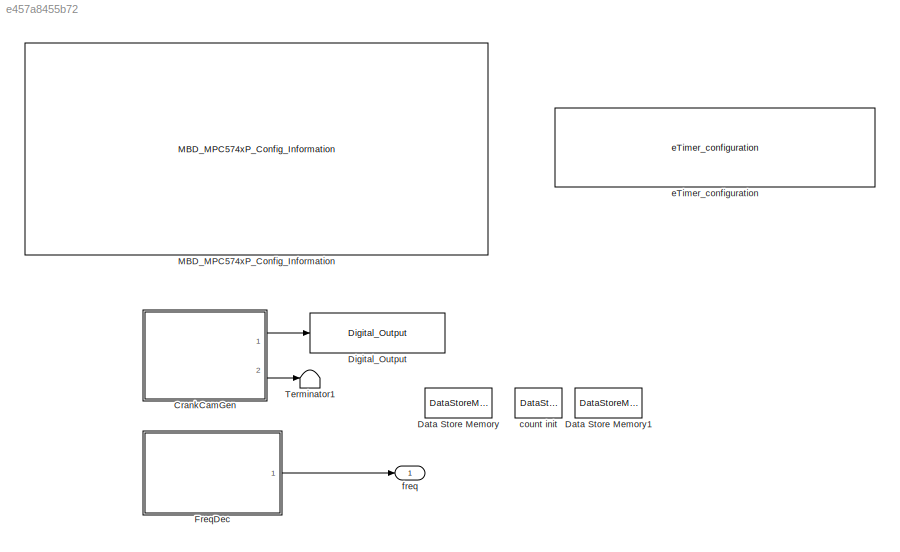
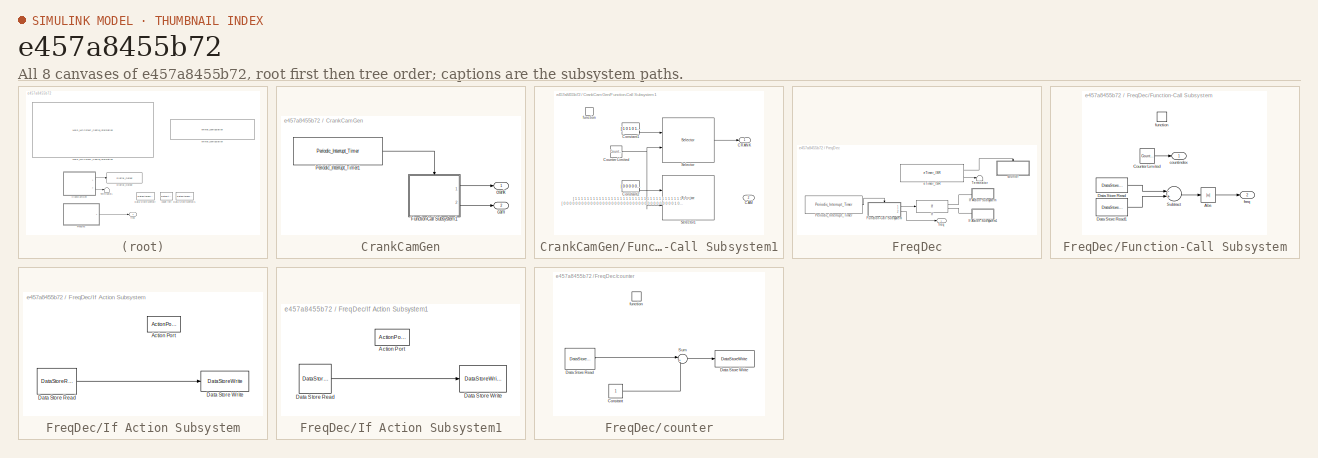
[diagram: thumbnail index - all 8 canvases of the model, root first then tree order]
MODEL slx_e457a8455b72
KIND model
CONFIG AbsTol = auto
CONFIG EnableMultiTasking = off
CONFIG FixedStep = 1e-4
CONFIG InitFcn = mbd_pnt_consistency_checks(bdroot(gcs));
CONFIG MaxStep = auto
CONFIG MinStep = auto
CONFIG RelTol = 1e-3
CONFIG SampleTimeConstraint = Unconstrained
CONFIG Solver = FixedStepDiscrete
CONFIG SolverName = FixedStepDiscrete
CONFIG StartTime = 0.0
CONFIG StopTime = 10.0
BLOCK [SubSystem] CrankCamGen
  Ports = [0, 2]
  RequestExecContextInheritance = off
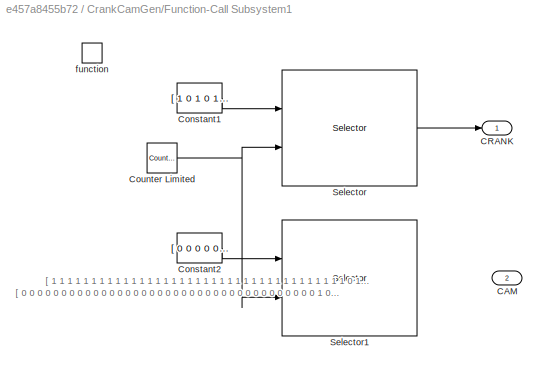
BLOCK [SubSystem] CrankCamGen/Function-Call Subsystem1
  Ports = [0, 2, 0, 1]
  RequestExecContextInheritance = off
  TreatAsAtomicUnit = on
BLOCK [Outport] CrankCamGen/Function-Call Subsystem1/CAM
  IconDisplay = Port number
  Port = 2
BLOCK [Outport] CrankCamGen/Function-Call Subsystem1/CRANK
  IconDisplay = Port number
BLOCK [Constant] CrankCamGen/Function-Call Subsystem1/Constant1
  OutDataTypeStr = boolean
  Value = [ 1 0 1 0 1 0 1 0 1 0 1 0 1 0 1 0 1 0 1 0 1 0 1 0 1 0 1 0 1 0 1 0 1 0 1 0 0 0 0 0 1 0 1 0 1 0 1 0 1 0 1 0 1 0 1 0 1 0 1 0 1 0 1 0 1 0 1 0 1 0 1 0 1 0 1 0 0 0 0 0 1 0 1 0 1 0 1 0 1 0 1 0 1 0 1 0 1 0 1 0 1 0 1 0 1 0 1 0 1 0 1 0 1 0 1 0 0 0 0 0 1 0 1 0 1 0 1 0 1 0 1 0 1 0 1 0 1 0 1 0 1 0 1 0 1 0 1 0 1 0 1 0 1 0 1 0 0 0 0 0 1 0 1 0 1 0 1 0 1 0 1 0 1 0 1 0 1 0 1 0 1 0 1 0 1 0 1 0 1 0 1 0 1 0 1 0 0 0 0 ...<+83ch>
BLOCK [Constant] CrankCamGen/Function-Call Subsystem1/Constant2
  OutDataTypeStr = boolean
  Value = [ 0 0 0 0 0 0 0 0 0 0 0 0 0 0 0 0 0 0 0 0 0 0 0 0 0 0 0 0 0 0 0 0 0 0 0 0 0 1 0 0 0 0 0 0 0 0 0 0 0 0 0 0 0 0 0 0 0 0 0 0 0 0 0 0 0 0 0 0 0 0 0 0 0 0 0 0 0 1 0 0 0 0 0 0 0 0 0 0 0 0 0 0 0 0 0 0 0 0 0 0 0 0 0 0 0 0 0 0 0 0 0 0 0 0 0 0 0 1 0 0 0 0 0 0 0 0 0 0 0 0 0 0 0 0 0 0 0 0 0 0 0 0 0 0 0 0 0 0 0 0 0 0 0 0 0 0 0 1 0 0 0 0 0 0 0 0 0 0 0 0 0 0 0 0 0 0 0 0 0 0 0 0 0 0 0 0 0 0 0 0 0 0 0 0 0 0 0 1 0 ...<+83ch>
BLOCK [Reference] CrankCamGen/Function-Call Subsystem1/Counter Limited  REF=simulink/Sources/Counter
Limited
  Ports = [0, 1]
  SourceBlock = simulink/Sources/Counter\nLimited
  SourceProductBaseCode = SL
  SourceProductName = Simulink
  SourceType = Counter Limited
BLOCK [Selector] CrankCamGen/Function-Call Subsystem1/Selector
  IndexMode = Zero-based
  IndexOptions = Index vector (port)
  Indices = [1 3]
  InputPortWidth = 240
  OutputSizes = 1
  Ports = [2, 1]
BLOCK [Selector] CrankCamGen/Function-Call Subsystem1/Selector1
  IndexMode = Zero-based
  IndexOptions = Index vector (port)
  Indices = [1 3]
  InputPortWidth = 240
  OutputSizes = 1
  Ports = [2, 1]
BLOCK [TriggerPort] CrankCamGen/Function-Call Subsystem1/function
  Ports = []
  StatesWhenEnabling = held
  TriggerType = function-call
  VariantControl = Variant
BLOCK [Reference] CrankCamGen/Periodic_Interrupt_Timer1  REF=mbd_pnt_ec_toolbox/MPC574xP/Utility Blocks/Periodic_Interrupt_Timer
  Ports = [0, 1]
  SourceBlock = mbd_pnt_ec_toolbox/MPC574xP/Utility Blocks/Periodic_Interrupt_Timer
  SourceProductName = Model Based Design Toolbox for MPC574xP
  SourceType = timer_pnt_pit_block
BLOCK [Outport] CrankCamGen/cam
  IconDisplay = Port number
  Port = 2
BLOCK [Outport] CrankCamGen/crank
  IconDisplay = Port number
BLOCK [DataStoreMemory] Data Store Memory
  DataStoreName = counterprev
  OutDataTypeStr = double
  ReadBeforeWriteMsg = warning
  ShowAdditionalParam = off
  WriteAfterReadMsg = warning
  WriteAfterWriteMsg = warning
BLOCK [DataStoreMemory] Data Store Memory1
  DataStoreName = counternext
  OutDataTypeStr = double
  ReadBeforeWriteMsg = warning
  ShowAdditionalParam = off
  WriteAfterReadMsg = warning
  WriteAfterWriteMsg = warning
BLOCK [Reference] Digital_Output  REF=mbd_pnt_ec_toolbox/MPC574xP/Peripheral Interface Blocks/Digital_Output
  Ports = [1]
  SourceBlock = mbd_pnt_ec_toolbox/MPC574xP/Peripheral Interface Blocks/Digital_Output
  SourceProductName = Model Based Design Toolbox for MPC574xP
  SourceType = GPIO_PNT_Output
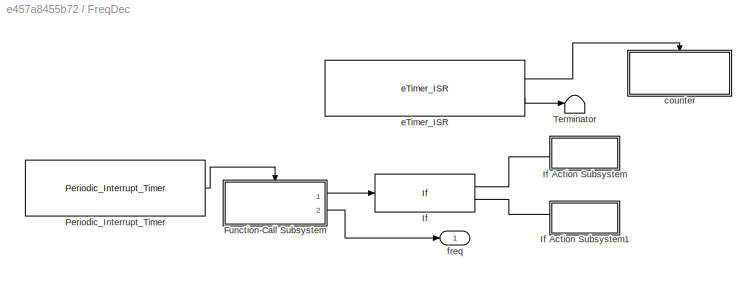
BLOCK [SubSystem] FreqDec
  Ports = [0, 1]
  RequestExecContextInheritance = off
BLOCK [SubSystem] FreqDec/Function-Call Subsystem
  Ports = [0, 2, 0, 1]
  RequestExecContextInheritance = off
  TreatAsAtomicUnit = on
BLOCK [Abs] FreqDec/Function-Call Subsystem/Abs
  SaturateOnIntegerOverflow = off
BLOCK [Reference] FreqDec/Function-Call Subsystem/Counter Limited  REF=simulink/Sources/Counter
Limited
  Ports = [0, 1]
  SourceBlock = simulink/Sources/Counter\nLimited
  SourceProductBaseCode = SL
  SourceProductName = Simulink
  SourceType = Counter Limited
BLOCK [DataStoreRead] FreqDec/Function-Call Subsystem/Data Store Read
  DataStoreName = counterprev
  Ports = [0, 1]
BLOCK [DataStoreRead] FreqDec/Function-Call Subsystem/Data Store Read1
  DataStoreName = counternext
  Ports = [0, 1]
BLOCK [Sum] FreqDec/Function-Call Subsystem/Subtract
  InputSameDT = off
  Inputs = -+
  OutDataTypeStr = Inherit: Inherit via internal rule
  Ports = [2, 1]
  SaturateOnIntegerOverflow = off
BLOCK [Outport] FreqDec/Function-Call Subsystem/countindex
  IconDisplay = Port number
BLOCK [Outport] FreqDec/Function-Call Subsystem/freq
  IconDisplay = Port number
  Port = 2
BLOCK [TriggerPort] FreqDec/Function-Call Subsystem/function
  Ports = []
  StatesWhenEnabling = held
  TriggerType = function-call
  VariantControl = Variant
BLOCK [If] FreqDec/If
  IfExpression = u1 == 0
  Ports = [1, 2]
BLOCK [SubSystem] FreqDec/If Action Subsystem
  Ports = [0, 0, 0, 0, 0, 0, 0, 1]
  RequestExecContextInheritance = off
  TreatAsAtomicUnit = on
BLOCK [ActionPort] FreqDec/If Action Subsystem/Action Port
  ActionType = then
BLOCK [DataStoreRead] FreqDec/If Action Subsystem/Data Store Read
  DataStoreName = countedge
  Ports = [0, 1]
BLOCK [DataStoreWrite] FreqDec/If Action Subsystem/Data Store Write
  DataStoreName = counterprev
  Ports = [1]
BLOCK [SubSystem] FreqDec/If Action Subsystem1
  Ports = [0, 0, 0, 0, 0, 0, 0, 1]
  RequestExecContextInheritance = off
  TreatAsAtomicUnit = on
BLOCK [ActionPort] FreqDec/If Action Subsystem1/Action Port
  ActionType = else
BLOCK [DataStoreRead] FreqDec/If Action Subsystem1/Data Store Read
  DataStoreName = countedge
  Ports = [0, 1]
BLOCK [DataStoreWrite] FreqDec/If Action Subsystem1/Data Store Write
  DataStoreName = counternext
  Ports = [1]
BLOCK [Reference] FreqDec/Periodic_Interrupt_Timer  REF=mbd_pnt_ec_toolbox/MPC574xP/Utility Blocks/Periodic_Interrupt_Timer
  Ports = [0, 1]
  SourceBlock = mbd_pnt_ec_toolbox/MPC574xP/Utility Blocks/Periodic_Interrupt_Timer
  SourceProductName = Model Based Design Toolbox for MPC574xP
  SourceType = timer_pnt_pit_block
BLOCK [Terminator] FreqDec/Terminator
BLOCK [SubSystem] FreqDec/counter
  Ports = [0, 0, 0, 1]
  RequestExecContextInheritance = off
  TreatAsAtomicUnit = on
BLOCK [Constant] FreqDec/counter/Constant
  OutDataTypeStr = double
BLOCK [DataStoreRead] FreqDec/counter/Data Store Read
  DataStoreName = countedge
  Ports = [0, 1]
BLOCK [DataStoreWrite] FreqDec/counter/Data Store Write
  DataStoreName = countedge
  Ports = [1]
BLOCK [Sum] FreqDec/counter/Sum
  IconShape = round
  InputSameDT = off
  Inputs = |++
  OutDataTypeStr = Inherit: Inherit via internal rule
  Ports = [2, 1]
  SaturateOnIntegerOverflow = off
BLOCK [TriggerPort] FreqDec/counter/function
  Ports = []
  StatesWhenEnabling = held
  TriggerType = function-call
  VariantControl = Variant
BLOCK [Reference] FreqDec/eTimer_ISR  REF=mbd_pnt_ec_toolbox/MPC574xP/Motor Control Blocks/eTimer_ISR
  Ports = [0, 2]
  SourceBlock = mbd_pnt_ec_toolbox/MPC574xP/Motor Control Blocks/eTimer_ISR
  SourceProductName = Model Based Design Toolbox for MPC574xP
  SourceType = eTimer_pnt_interrupt
BLOCK [Outport] FreqDec/freq
  IconDisplay = Port number
BLOCK [Reference] MBD_MPC574xP_Config_Information  REF=mbd_pnt_ec_toolbox/MPC574xP/MBD_MPC574xP_Config_Information
  Ports = []
  SourceBlock = mbd_pnt_ec_toolbox/MPC574xP/MBD_MPC574xP_Config_Information
  SourceProductName = Model Based Design Toolbox for MPC574xP
  SourceType = MBDTBX_EC_PNT
BLOCK [Terminator] Terminator1
BLOCK [DataStoreMemory] count init
  DataStoreName = countedge
  OutDataTypeStr = double
  ReadBeforeWriteMsg = warning
  ShowAdditionalParam = off
  WriteAfterReadMsg = warning
  WriteAfterWriteMsg = warning
BLOCK [Reference] eTimer_configuration  REF=mbd_pnt_ec_toolbox/MPC574xP/Motor Control Blocks/eTimer_configuration
  Ports = []
  SourceBlock = mbd_pnt_ec_toolbox/MPC574xP/Motor Control Blocks/eTimer_configuration
  SourceProductName = Model Based Design Toolbox for MPC574xP
  SourceType = eTimer_pnt_config
BLOCK [Outport] freq
  IconDisplay = Port number
ANNOTATION CrankCamGen/Function-Call Subsystem1: [ 0 0 0 0 0 0 0 0 0 0 0 0 0 0 0 0 0 0 0 0 0 0 0 0 0 0 0 0 0 0 0 0 0 0 0 0 0 1 0 0 0 0 0 0 0 0 0 0 0 0 0 0 0 0 0 0 0 0 0 0 0 0 0 0 0 0 0 0 0 0 0 0 0 0 0 0 0 1 0 0 0 0 0 0 0 0 0 0 0 0 0 0 0 0 0 0 0 0 0 0 0 0 0 0 0 0 0 0 0 0 0 0 0 0 0 0 0 1 0 0 0 0 0 0 0 0 0 0 0 0 0 0 0 0 0 0 0 0 0 0 0 0 0 0 0 0 0 0 0 0 0 0 0 0 0 0 0 1 0 0 0 0 0 0 0 0 0 0 0 0 0 0 0 0 0 0 0 0 0 0 0 0 0 0 0 0 0 0 0 0 0 0 0 0 0 0 0 1 0 ...<+83ch>
ANNOTATION CrankCamGen/Function-Call Subsystem1: [ 1 1 1 1 1 1 1 1 1 1 1 1 1 1 1 1 1 1 1 1 1 1 1 1 1 1 1 1 1 1 1 1 1 1 1 1 1 0 1 1 1 1 1 1 1 1 1 1 1 1 1 1 1 1 1 1 1 1 1 1 1 1 1 1 1 1 1 1 1 1 1 1 1 1 1 1 1 0 1 1 1 1 1 1 1 1 1 1 1 1 1 1 1 1 1 1 1 1 1 1 1 1 1 1 1 1 1 1 1 1 1 1 1 1 1 1 1 0 1 1 1 1 1 1 1 1 1 1 1 1 1 1 1 1 1 1 1 1 1 1 1 1 1 1 1 1 1 1 1 1 1 1 1 1 1 1 1 0 1 1 1 1 1 1 1 1 1 1 1 1 1 1 1 1 1 1 1 1 1 1 1 1 1 1 1 1 1 1 1 1 1 1 1 1 1 1 1 0 1 ...<+83ch>
LINE CrankCamGen/Function-Call Subsystem1/Constant1:1 -> CrankCamGen/Function-Call Subsystem1/Selector:1
LINE CrankCamGen/Function-Call Subsystem1/Constant2:1 -> CrankCamGen/Function-Call Subsystem1/Selector1:1
NET CrankCamGen/Function-Call Subsystem1/Counter Limited:1 -> CrankCamGen/Function-Call Subsystem1/Selector1:2, CrankCamGen/Function-Call Subsystem1/Selector:2
LINE CrankCamGen/Function-Call Subsystem1/Selector:1 -> CrankCamGen/Function-Call Subsystem1/CRANK:1
LINE CrankCamGen/Function-Call Subsystem1:1 -> CrankCamGen/crank:1
LINE CrankCamGen/Function-Call Subsystem1:2 -> CrankCamGen/cam:1
LINE CrankCamGen/Periodic_Interrupt_Timer1:1 -> CrankCamGen/Function-Call Subsystem1:trigger
LINE CrankCamGen:1 -> Digital_Output:1
LINE CrankCamGen:2 -> Terminator1:1
LINE FreqDec/Function-Call Subsystem/Abs:1 -> FreqDec/Function-Call Subsystem/freq:1
LINE FreqDec/Function-Call Subsystem/Counter Limited:1 -> FreqDec/Function-Call Subsystem/countindex:1
LINE FreqDec/Function-Call Subsystem/Data Store Read1:1 -> FreqDec/Function-Call Subsystem/Subtract:2
LINE FreqDec/Function-Call Subsystem/Data Store Read:1 -> FreqDec/Function-Call Subsystem/Subtract:1
LINE FreqDec/Function-Call Subsystem/Subtract:1 -> FreqDec/Function-Call Subsystem/Abs:1
LINE FreqDec/Function-Call Subsystem:1 -> FreqDec/If:1
LINE FreqDec/Function-Call Subsystem:2 -> FreqDec/freq:1
LINE FreqDec/If Action Subsystem/Data Store Read:1 -> FreqDec/If Action Subsystem/Data Store Write:1
LINE FreqDec/If Action Subsystem1/Data Store Read:1 -> FreqDec/If Action Subsystem1/Data Store Write:1
LINE FreqDec/If:1 -> FreqDec/If Action Subsystem:ifaction
LINE FreqDec/If:2 -> FreqDec/If Action Subsystem1:ifaction
LINE FreqDec/Periodic_Interrupt_Timer:1 -> FreqDec/Function-Call Subsystem:trigger
LINE FreqDec/counter/Constant:1 -> FreqDec/counter/Sum:2
LINE FreqDec/counter/Data Store Read:1 -> FreqDec/counter/Sum:1
LINE FreqDec/counter/Sum:1 -> FreqDec/counter/Data Store Write:1
LINE FreqDec/eTimer_ISR:1 -> FreqDec/counter:trigger
LINE FreqDec/eTimer_ISR:2 -> FreqDec/Terminator:1
LINE FreqDec:1 -> freq:1
note: NET lines group one-source signal fan-out (src -> all destinations, sorted); 1:1 wires keep LINE
